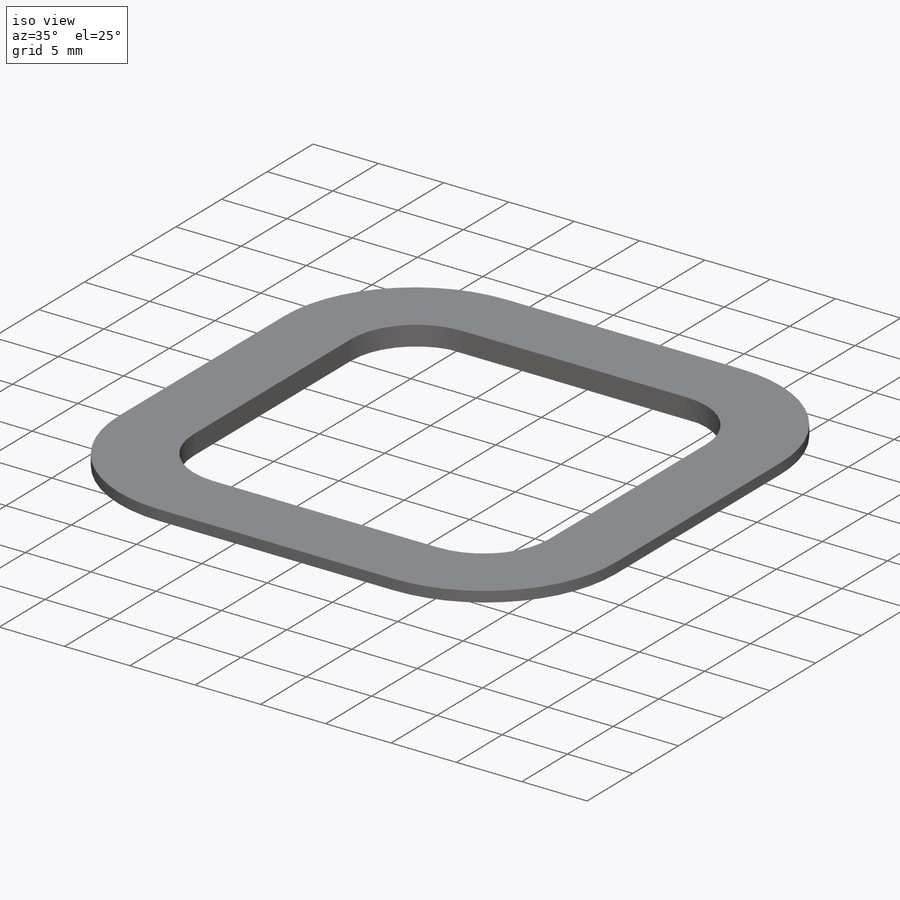
[diagram: iso view]
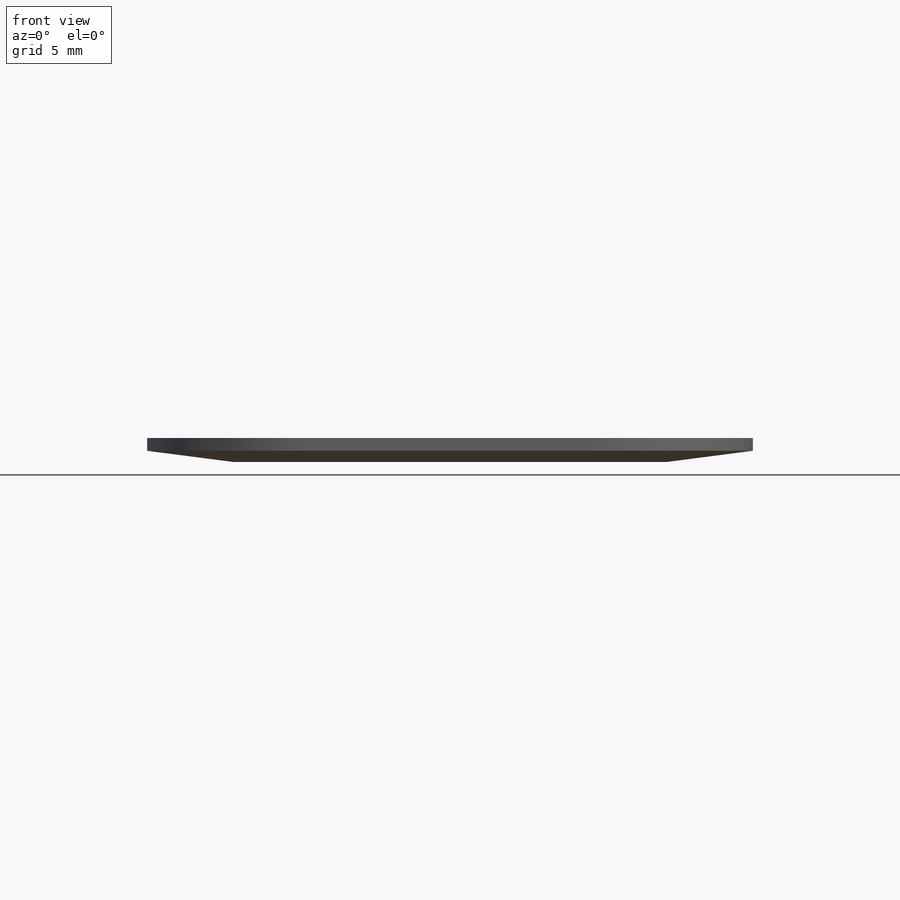
[diagram: front view]
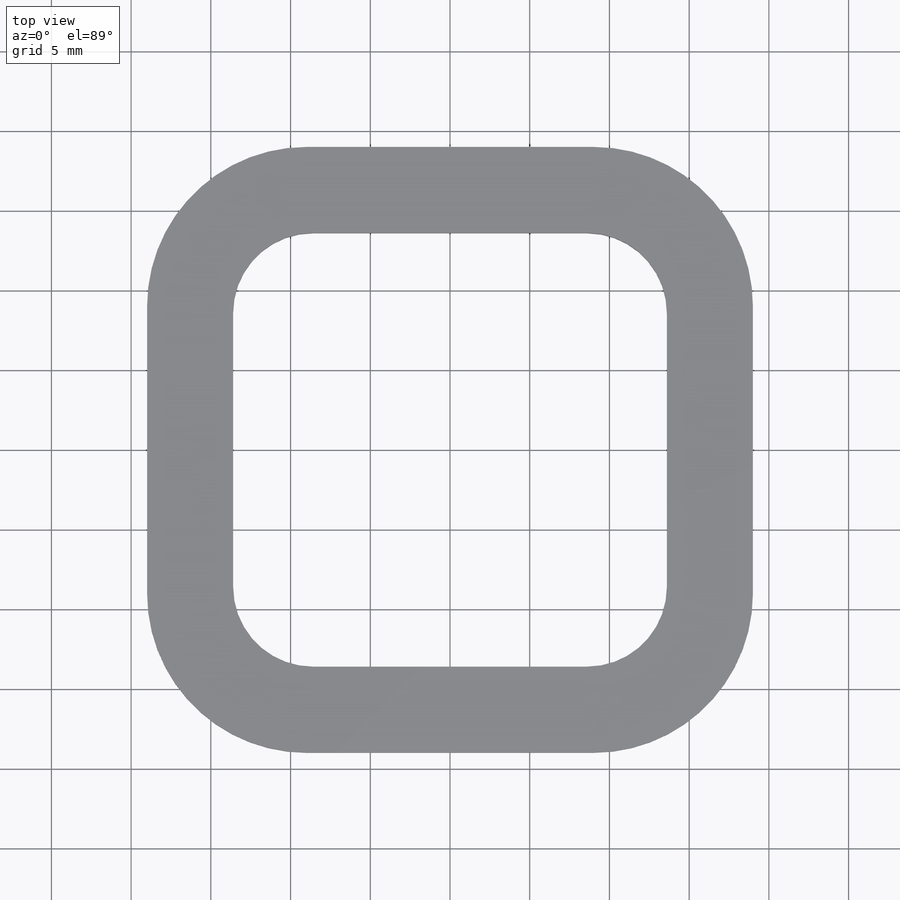
[diagram: top view]
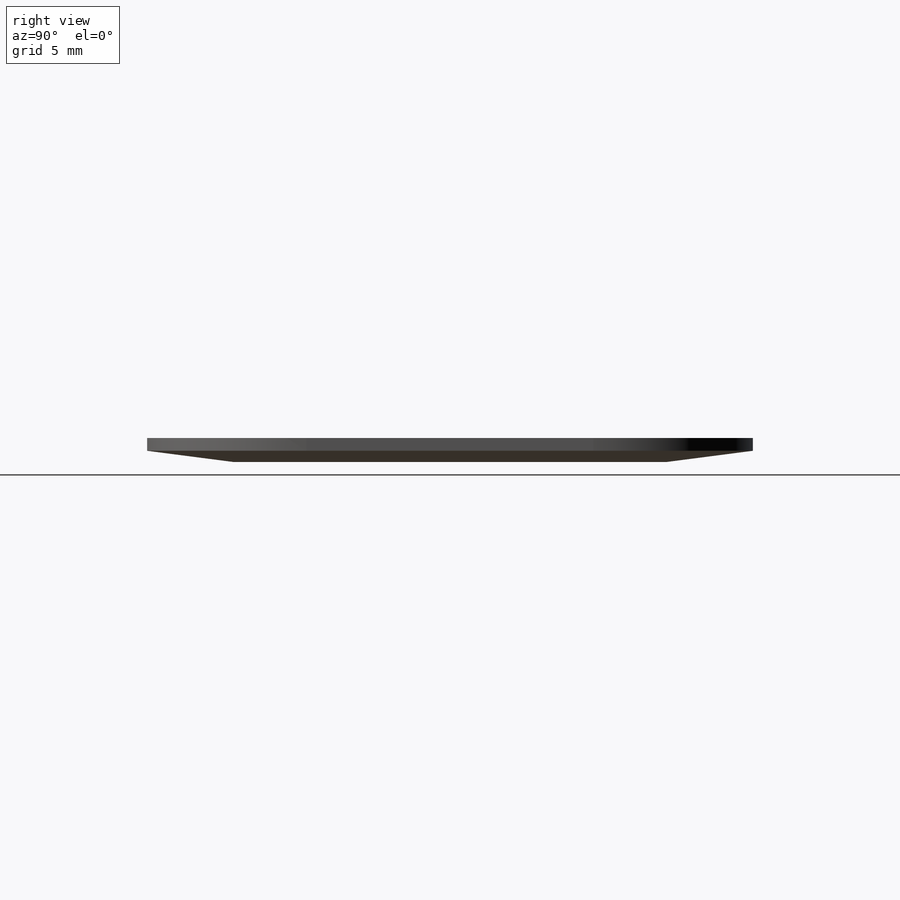
[diagram: right view]
SOLIDWORKS PART (.sldprt)
format: sldprt  version: not decoded by parser v0  size: 207,872 bytes
history: native  units: mm
features: sketch x4, fillet x2, material x1, extrude x1, sweep x1 (+11 scaffold rows collapsed)
feature tree (20):
  scaffold x11  (default folders/planes/origin — collapsed)
  material  "Material <not specified>"
  sketch  "Sketch1"  dims[D1=38.0mm D2=27.2mm]
  extrude  "Extrude1"  Depth=1.5mm
  fillet  "Fillet1"  Radius=5mm
  fillet  "Fillet2"  Radius=10mm
  sketch  "Sketch2"  dims[D1=0.7mm]
  sketch  "Sketch3"  dims[D1=0.0mm]
  sketch  "Sketch4"
  sweep  "Cut-Sweep1"
decode coverage: 6 of 8 modeling features carry decoded parameters
note: suppression state not decoded; provenance and decode notes live in map.json
